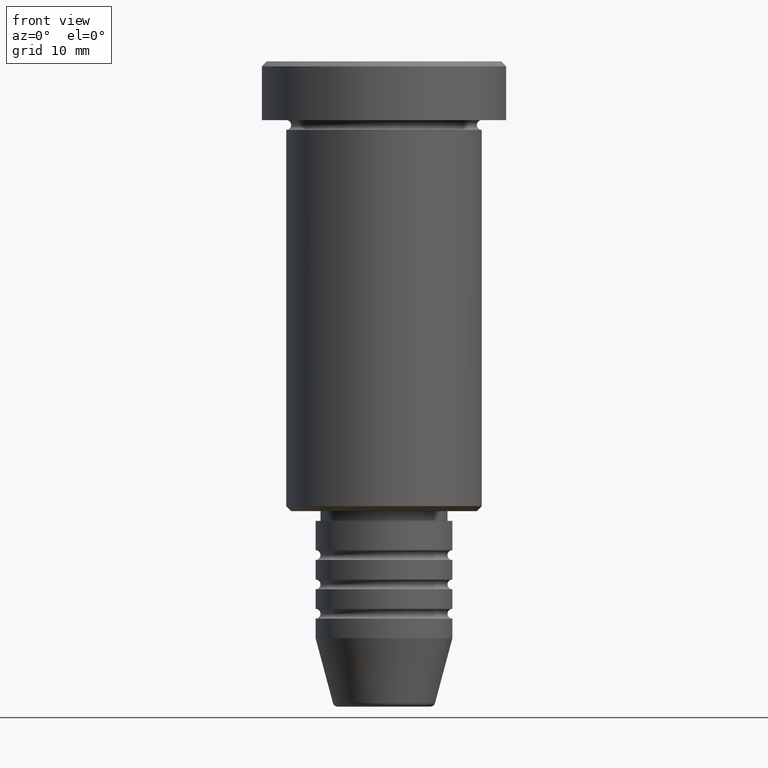
[diagram: clean part render]
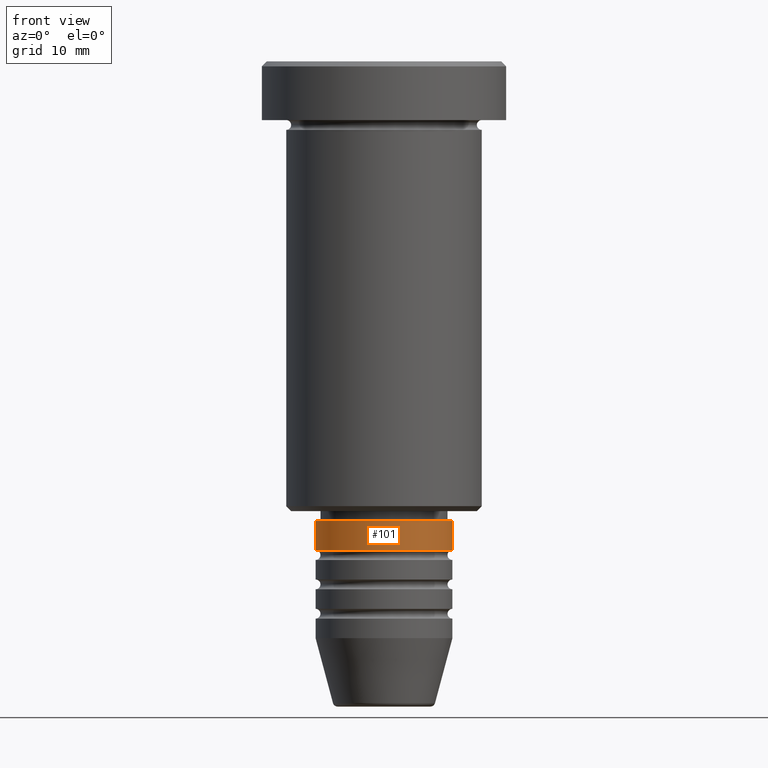
[diagram: same view with one face highlighted and labeled with its STEP entity id]
A machine part, front view. The second image highlights one B-rep face of the part: STEP entity #101.
In plain terms, the highlighted cylindrical surface (partial cylindrical patch) has radius 7 mm, axis along (-0, -0, 1).
Its self-contained STEP definition (entity closure, byte-faithful):
#3 = CARTESIAN_POINT ( 'NONE',  ( 7.000000000000000000, 0.000000000000000000, -47.00000000000000000 ) ) ;
#8 = ORIENTED_EDGE ( 'NONE', *, *, #549, .T. ) ;
#13 = DIRECTION ( 'NONE',  ( 1.000000000000000000, 0.000000000000000000, 0.000000000000000000 ) ) ;
#33 = EDGE_CURVE ( 'NONE', #961, #155, #623, .T. ) ;
#37 = CARTESIAN_POINT ( 'NONE',  ( -7.000000000000000000, 8.572527594031473190E-16, -49.99999999999997158 ) ) ;
#92 = CARTESIAN_POINT ( 'NONE',  ( 7.000000000000000000, 0.000000000000000000, -49.99999999999997158 ) ) ;
#101 = ADVANCED_FACE ( 'NONE', ( #291 ), #377, .T. ) ;
#155 = VERTEX_POINT ( 'NONE', #3 ) ;
#185 = CARTESIAN_POINT ( 'NONE',  ( -7.000000000000000000, 8.572527594031473190E-16, -47.00000000000000000 ) ) ;
#200 = CARTESIAN_POINT ( 'NONE',  ( -7.000000000000000000, 8.572527594031473190E-16, 0.000000000000000000 ) ) ;
#205 = EDGE_CURVE ( 'NONE', #703, #939, #212, .T. ) ;
#212 = CIRCLE ( 'NONE', #1078, 7.000000000000000000 ) ;
#236 = ORIENTED_EDGE ( 'NONE', *, *, #33, .F. ) ;
#286 = LINE ( 'NONE', #200, #834 ) ;
#291 = FACE_OUTER_BOUND ( 'NONE', #380, .T. ) ;
#303 = DIRECTION ( 'NONE',  ( 1.000000000000000000, 0.000000000000000000, 0.000000000000000000 ) ) ;
#315 = ORIENTED_EDGE ( 'NONE', *, *, #505, .F. ) ;
#322 = DIRECTION ( 'NONE',  ( -0.000000000000000000, -0.000000000000000000, 1.000000000000000000 ) ) ;
#377 = CYLINDRICAL_SURFACE ( 'NONE', #850, 7.000000000000000000 ) ;
#380 = EDGE_LOOP ( 'NONE', ( #315, #1101, #8, #236 ) ) ;
#392 = CARTESIAN_POINT ( 'NONE',  ( 0.000000000000000000, 0.000000000000000000, 0.000000000000000000 ) ) ;
#505 = EDGE_CURVE ( 'NONE', #703, #961, #286, .T. ) ;
#549 = EDGE_CURVE ( 'NONE', #939, #155, #644, .T. ) ;
#603 = VECTOR ( 'NONE', #654, 1000.000000000000000 ) ;
#623 = CIRCLE ( 'NONE', #1017, 7.000000000000000000 ) ;
#644 = LINE ( 'NONE', #1004, #603 ) ;
#654 = DIRECTION ( 'NONE',  ( -0.000000000000000000, -0.000000000000000000, 1.000000000000000000 ) ) ;
#675 = CARTESIAN_POINT ( 'NONE',  ( 0.000000000000000000, 0.000000000000000000, -49.99999999999997158 ) ) ;
#703 = VERTEX_POINT ( 'NONE', #37 ) ;
#767 = CARTESIAN_POINT ( 'NONE',  ( 0.000000000000000000, 0.000000000000000000, -47.00000000000000000 ) ) ;
#834 = VECTOR ( 'NONE', #1014, 1000.000000000000000 ) ;
#843 = DIRECTION ( 'NONE',  ( -0.000000000000000000, -0.000000000000000000, 1.000000000000000000 ) ) ;
#847 = DIRECTION ( 'NONE',  ( 1.000000000000000000, 0.000000000000000000, 0.000000000000000000 ) ) ;
#850 = AXIS2_PLACEMENT_3D ( 'NONE', #392, #843, #13 ) ;
#939 = VERTEX_POINT ( 'NONE', #92 ) ;
#961 = VERTEX_POINT ( 'NONE', #185 ) ;
#1004 = CARTESIAN_POINT ( 'NONE',  ( 7.000000000000000000, 0.000000000000000000, 0.000000000000000000 ) ) ;
#1014 = DIRECTION ( 'NONE',  ( -0.000000000000000000, -0.000000000000000000, 1.000000000000000000 ) ) ;
#1017 = AXIS2_PLACEMENT_3D ( 'NONE', #767, #1116, #847 ) ;
#1078 = AXIS2_PLACEMENT_3D ( 'NONE', #675, #322, #303 ) ;
#1101 = ORIENTED_EDGE ( 'NONE', *, *, #205, .T. ) ;
#1116 = DIRECTION ( 'NONE',  ( -0.000000000000000000, -0.000000000000000000, 1.000000000000000000 ) ) ;